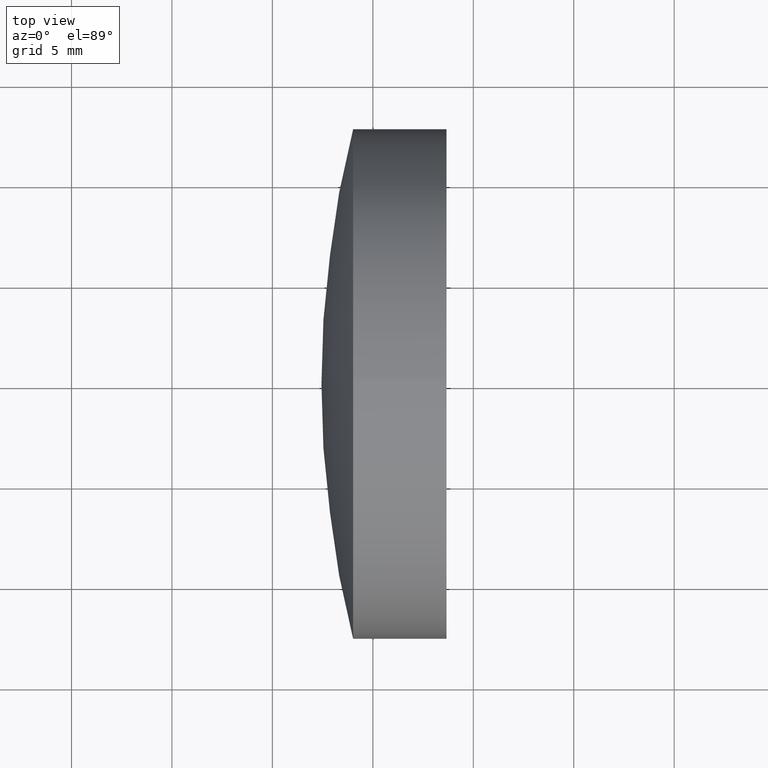
[diagram: clean part render]
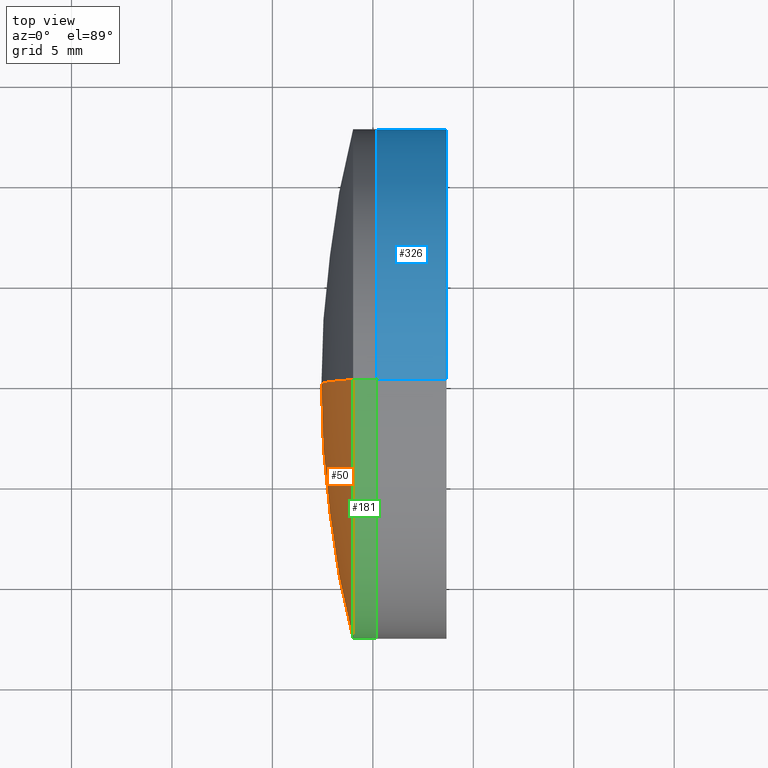
[diagram: same view with three faces highlighted in distinct colors, each labeled with its STEP entity id]
A machine part, top view with three faces highlighted in distinct colors.
Their STEP definitions:

[orange] entity #50 — the highlighted spherical surface has radius 52 mm.
#5 = EDGE_CURVE ( 'NONE', #327, #46, #310, .T. ) ;
#12 = CARTESIAN_POINT ( 'NONE',  ( 334.0169874091439500, 0.0000000000000000000, 0.0000000000000000000 ) ) ;
#15 = AXIS2_PLACEMENT_3D ( 'NONE', #262, #101, #289 ) ;
#29 = DIRECTION ( 'NONE',  ( 0.0000000000000000000, -1.000000000000000000, -1.224646799147353200E-016 ) ) ;
#42 = DIRECTION ( 'NONE',  ( 0.0000000000000000000, 0.0000000000000000000, 1.000000000000000000 ) ) ;
#46 = VERTEX_POINT ( 'NONE', #192 ) ;
#47 = SPHERICAL_SURFACE ( 'NONE', #189, 51.99999999999998600 ) ;
#50 = ADVANCED_FACE ( 'NONE', ( #236 ), #47, .T. ) ;
#59 = CARTESIAN_POINT ( 'NONE',  ( 334.0169874091439500, -1.555301434917139600E-015, 12.70000000000001900 ) ) ;
#62 = CARTESIAN_POINT ( 'NONE',  ( 384.4422786824721900, 0.0000000000000000000, 8.273825033181206100E-015 ) ) ;
#92 = DIRECTION ( 'NONE',  ( 0.0000000000000000000, 0.0000000000000000000, -1.000000000000000000 ) ) ;
#101 = DIRECTION ( 'NONE',  ( 0.0000000000000000000, 1.000000000000000000, -0.0000000000000000000 ) ) ;
#121 = CARTESIAN_POINT ( 'NONE',  ( 384.4422786824721900, 0.0000000000000000000, 8.273825033181206100E-015 ) ) ;
#136 = ORIENTED_EDGE ( 'NONE', *, *, #230, .T. ) ;
#137 = ORIENTED_EDGE ( 'NONE', *, *, #233, .F. ) ;
#148 = CARTESIAN_POINT ( 'NONE',  ( 334.0169874091439500, 0.0000000000000000000, -12.70000000000001000 ) ) ;
#164 = DIRECTION ( 'NONE',  ( 0.0000000000000000000, 1.224646799147353200E-016, -1.000000000000000000 ) ) ;
#180 = VERTEX_POINT ( 'NONE', #148 ) ;
#189 = AXIS2_PLACEMENT_3D ( 'NONE', #121, #250, #92 ) ;
#192 = CARTESIAN_POINT ( 'NONE',  ( 332.4422786824722500, 0.0000000000000000000, 5.089743355398088300E-015 ) ) ;
#201 = DIRECTION ( 'NONE',  ( -1.000000000000000000, -0.0000000000000000000, -0.0000000000000000000 ) ) ;
#220 = CIRCLE ( 'NONE', #347, 12.70000000000000600 ) ;
#230 = EDGE_CURVE ( 'NONE', #180, #327, #220, .T. ) ;
#233 = EDGE_CURVE ( 'NONE', #180, #46, #300, .T. ) ;
#236 = FACE_OUTER_BOUND ( 'NONE', #308, .T. ) ;
#250 = DIRECTION ( 'NONE',  ( -0.0000000000000000000, -1.000000000000000000, -0.0000000000000000000 ) ) ;
#262 = CARTESIAN_POINT ( 'NONE',  ( 384.4422786824721900, 0.0000000000000000000, 8.273825033181206100E-015 ) ) ;
#287 = AXIS2_PLACEMENT_3D ( 'NONE', #62, #29, #164 ) ;
#289 = DIRECTION ( 'NONE',  ( 0.0000000000000000000, 0.0000000000000000000, 1.000000000000000000 ) ) ;
#300 = CIRCLE ( 'NONE', #15, 51.99999999999998600 ) ;
#308 = EDGE_LOOP ( 'NONE', ( #136, #320, #137 ) ) ;
#310 = CIRCLE ( 'NONE', #287, 51.99999999999998600 ) ;
#320 = ORIENTED_EDGE ( 'NONE', *, *, #5, .T. ) ;
#327 = VERTEX_POINT ( 'NONE', #59 ) ;
#347 = AXIS2_PLACEMENT_3D ( 'NONE', #12, #201, #42 ) ;

[blue] entity #326 — the highlighted cylindrical surface (partial cylindrical patch) has radius 12.7 mm, axis along (-1, -0, -0).
#6 = CARTESIAN_POINT ( 'NONE',  ( 335.1955762872631200, 0.0000000000000000000, 12.70000000000003100 ) ) ;
#16 = CARTESIAN_POINT ( 'NONE',  ( -0.5519199926577972300, 0.0000000000000000000, 12.70000000000001400 ) ) ;
#26 = CIRCLE ( 'NONE', #299, 12.69999999999999200 ) ;
#27 = FACE_OUTER_BOUND ( 'NONE', #133, .T. ) ;
#40 = CARTESIAN_POINT ( 'NONE',  ( -0.5519199926577972300, 1.555301434917140200E-015, -12.70000000000001400 ) ) ;
#41 = CARTESIAN_POINT ( 'NONE',  ( 338.6678479171338800, 0.0000000000000000000, 0.0000000000000000000 ) ) ;
#70 = ORIENTED_EDGE ( 'NONE', *, *, #186, .T. ) ;
#72 = DIRECTION ( 'NONE',  ( 0.0000000000000000000, 0.0000000000000000000, 1.000000000000000000 ) ) ;
#80 = VECTOR ( 'NONE', #205, 1000.000000000000000 ) ;
#81 = CYLINDRICAL_SURFACE ( 'NONE', #214, 12.70000000000001400 ) ;
#86 = VERTEX_POINT ( 'NONE', #6 ) ;
#97 = CARTESIAN_POINT ( 'NONE',  ( 335.1955762872631200, 0.0000000000000000000, 0.0000000000000000000 ) ) ;
#106 = LINE ( 'NONE', #16, #80 ) ;
#114 = VERTEX_POINT ( 'NONE', #166 ) ;
#118 = ORIENTED_EDGE ( 'NONE', *, *, #272, .F. ) ;
#119 = CIRCLE ( 'NONE', #202, 12.70000000000003300 ) ;
#126 = DIRECTION ( 'NONE',  ( 0.0000000000000000000, 0.0000000000000000000, 1.000000000000000000 ) ) ;
#133 = EDGE_LOOP ( 'NONE', ( #142, #70, #339, #118 ) ) ;
#142 = ORIENTED_EDGE ( 'NONE', *, *, #213, .T. ) ;
#154 = EDGE_CURVE ( 'NONE', #86, #337, #119, .T. ) ;
#166 = CARTESIAN_POINT ( 'NONE',  ( 338.6678479171338800, 1.555301434917139000E-015, -12.69999999999999200 ) ) ;
#175 = LINE ( 'NONE', #40, #325 ) ;
#186 = EDGE_CURVE ( 'NONE', #114, #337, #175, .T. ) ;
#188 = VERTEX_POINT ( 'NONE', #199 ) ;
#199 = CARTESIAN_POINT ( 'NONE',  ( 338.6678479171338800, 0.0000000000000000000, 12.69999999999999200 ) ) ;
#202 = AXIS2_PLACEMENT_3D ( 'NONE', #97, #282, #126 ) ;
#205 = DIRECTION ( 'NONE',  ( -1.000000000000000000, -0.0000000000000000000, -0.0000000000000000000 ) ) ;
#208 = CARTESIAN_POINT ( 'NONE',  ( 335.1955762872631200, 1.555301434917142400E-015, -12.70000000000002200 ) ) ;
#210 = DIRECTION ( 'NONE',  ( -1.000000000000000000, -0.0000000000000000000, -0.0000000000000000000 ) ) ;
#213 = EDGE_CURVE ( 'NONE', #188, #114, #26, .T. ) ;
#214 = AXIS2_PLACEMENT_3D ( 'NONE', #234, #210, #293 ) ;
#228 = DIRECTION ( 'NONE',  ( -1.000000000000000000, -0.0000000000000000000, -0.0000000000000000000 ) ) ;
#229 = DIRECTION ( 'NONE',  ( -1.000000000000000000, -0.0000000000000000000, -0.0000000000000000000 ) ) ;
#234 = CARTESIAN_POINT ( 'NONE',  ( -0.5519199926577972300, 0.0000000000000000000, 0.0000000000000000000 ) ) ;
#272 = EDGE_CURVE ( 'NONE', #188, #86, #106, .T. ) ;
#282 = DIRECTION ( 'NONE',  ( -1.000000000000000000, -0.0000000000000000000, -0.0000000000000000000 ) ) ;
#293 = DIRECTION ( 'NONE',  ( 0.0000000000000000000, 0.0000000000000000000, 1.000000000000000000 ) ) ;
#299 = AXIS2_PLACEMENT_3D ( 'NONE', #41, #229, #72 ) ;
#325 = VECTOR ( 'NONE', #228, 1000.000000000000000 ) ;
#326 = ADVANCED_FACE ( 'NONE', ( #27 ), #81, .T. ) ;
#337 = VERTEX_POINT ( 'NONE', #208 ) ;
#339 = ORIENTED_EDGE ( 'NONE', *, *, #154, .F. ) ;

[green] entity #181 — the highlighted cylindrical surface (partial cylindrical patch) has radius 12.7 mm, axis along (-1, -0, -0).
#12 = CARTESIAN_POINT ( 'NONE',  ( 334.0169874091439500, 0.0000000000000000000, 0.0000000000000000000 ) ) ;
#36 = DIRECTION ( 'NONE',  ( -1.000000000000000000, -0.0000000000000000000, -0.0000000000000000000 ) ) ;
#42 = DIRECTION ( 'NONE',  ( 0.0000000000000000000, 0.0000000000000000000, 1.000000000000000000 ) ) ;
#48 = ORIENTED_EDGE ( 'NONE', *, *, #206, .T. ) ;
#59 = CARTESIAN_POINT ( 'NONE',  ( 334.0169874091439500, -1.555301434917139600E-015, 12.70000000000001900 ) ) ;
#66 = DIRECTION ( 'NONE',  ( -1.000000000000000000, -0.0000000000000000000, -0.0000000000000000000 ) ) ;
#79 = LINE ( 'NONE', #248, #285 ) ;
#88 = EDGE_CURVE ( 'NONE', #107, #180, #79, .T. ) ;
#95 = CARTESIAN_POINT ( 'NONE',  ( 335.1955762872631200, 1.555301434917139200E-015, -12.70000000000000600 ) ) ;
#99 = DIRECTION ( 'NONE',  ( -1.000000000000000000, -0.0000000000000000000, -0.0000000000000000000 ) ) ;
#102 = LINE ( 'NONE', #171, #165 ) ;
#107 = VERTEX_POINT ( 'NONE', #95 ) ;
#129 = CARTESIAN_POINT ( 'NONE',  ( 335.1955762872631200, 0.0000000000000000000, 12.70000000000000600 ) ) ;
#141 = EDGE_CURVE ( 'NONE', #107, #215, #261, .T. ) ;
#148 = CARTESIAN_POINT ( 'NONE',  ( 334.0169874091439500, 0.0000000000000000000, -12.70000000000001000 ) ) ;
#152 = AXIS2_PLACEMENT_3D ( 'NONE', #197, #36, #224 ) ;
#165 = VECTOR ( 'NONE', #99, 1000.000000000000000 ) ;
#171 = CARTESIAN_POINT ( 'NONE',  ( 124.5233095260452400, 0.0000000000000000000, 12.70000000000000600 ) ) ;
#180 = VERTEX_POINT ( 'NONE', #148 ) ;
#181 = ADVANCED_FACE ( 'NONE', ( #251 ), #306, .T. ) ;
#185 = EDGE_LOOP ( 'NONE', ( #291, #253, #48, #331 ) ) ;
#197 = CARTESIAN_POINT ( 'NONE',  ( 335.1955762872631200, 0.0000000000000000000, 0.0000000000000000000 ) ) ;
#198 = CARTESIAN_POINT ( 'NONE',  ( 124.5233095260452400, 0.0000000000000000000, 0.0000000000000000000 ) ) ;
#201 = DIRECTION ( 'NONE',  ( -1.000000000000000000, -0.0000000000000000000, -0.0000000000000000000 ) ) ;
#206 = EDGE_CURVE ( 'NONE', #215, #327, #102, .T. ) ;
#215 = VERTEX_POINT ( 'NONE', #129 ) ;
#220 = CIRCLE ( 'NONE', #347, 12.70000000000000600 ) ;
#224 = DIRECTION ( 'NONE',  ( 0.0000000000000000000, 0.0000000000000000000, 1.000000000000000000 ) ) ;
#230 = EDGE_CURVE ( 'NONE', #180, #327, #220, .T. ) ;
#248 = CARTESIAN_POINT ( 'NONE',  ( 124.5233095260452400, 1.555301434917139200E-015, -12.70000000000000600 ) ) ;
#251 = FACE_OUTER_BOUND ( 'NONE', #185, .T. ) ;
#253 = ORIENTED_EDGE ( 'NONE', *, *, #141, .T. ) ;
#257 = DIRECTION ( 'NONE',  ( -1.000000000000000000, -0.0000000000000000000, -0.0000000000000000000 ) ) ;
#258 = DIRECTION ( 'NONE',  ( 0.0000000000000000000, 0.0000000000000000000, 1.000000000000000000 ) ) ;
#261 = CIRCLE ( 'NONE', #152, 12.70000000000000600 ) ;
#285 = VECTOR ( 'NONE', #66, 1000.000000000000000 ) ;
#291 = ORIENTED_EDGE ( 'NONE', *, *, #88, .F. ) ;
#306 = CYLINDRICAL_SURFACE ( 'NONE', #316, 12.70000000000000600 ) ;
#316 = AXIS2_PLACEMENT_3D ( 'NONE', #198, #257, #258 ) ;
#327 = VERTEX_POINT ( 'NONE', #59 ) ;
#331 = ORIENTED_EDGE ( 'NONE', *, *, #230, .F. ) ;
#347 = AXIS2_PLACEMENT_3D ( 'NONE', #12, #201, #42 ) ;